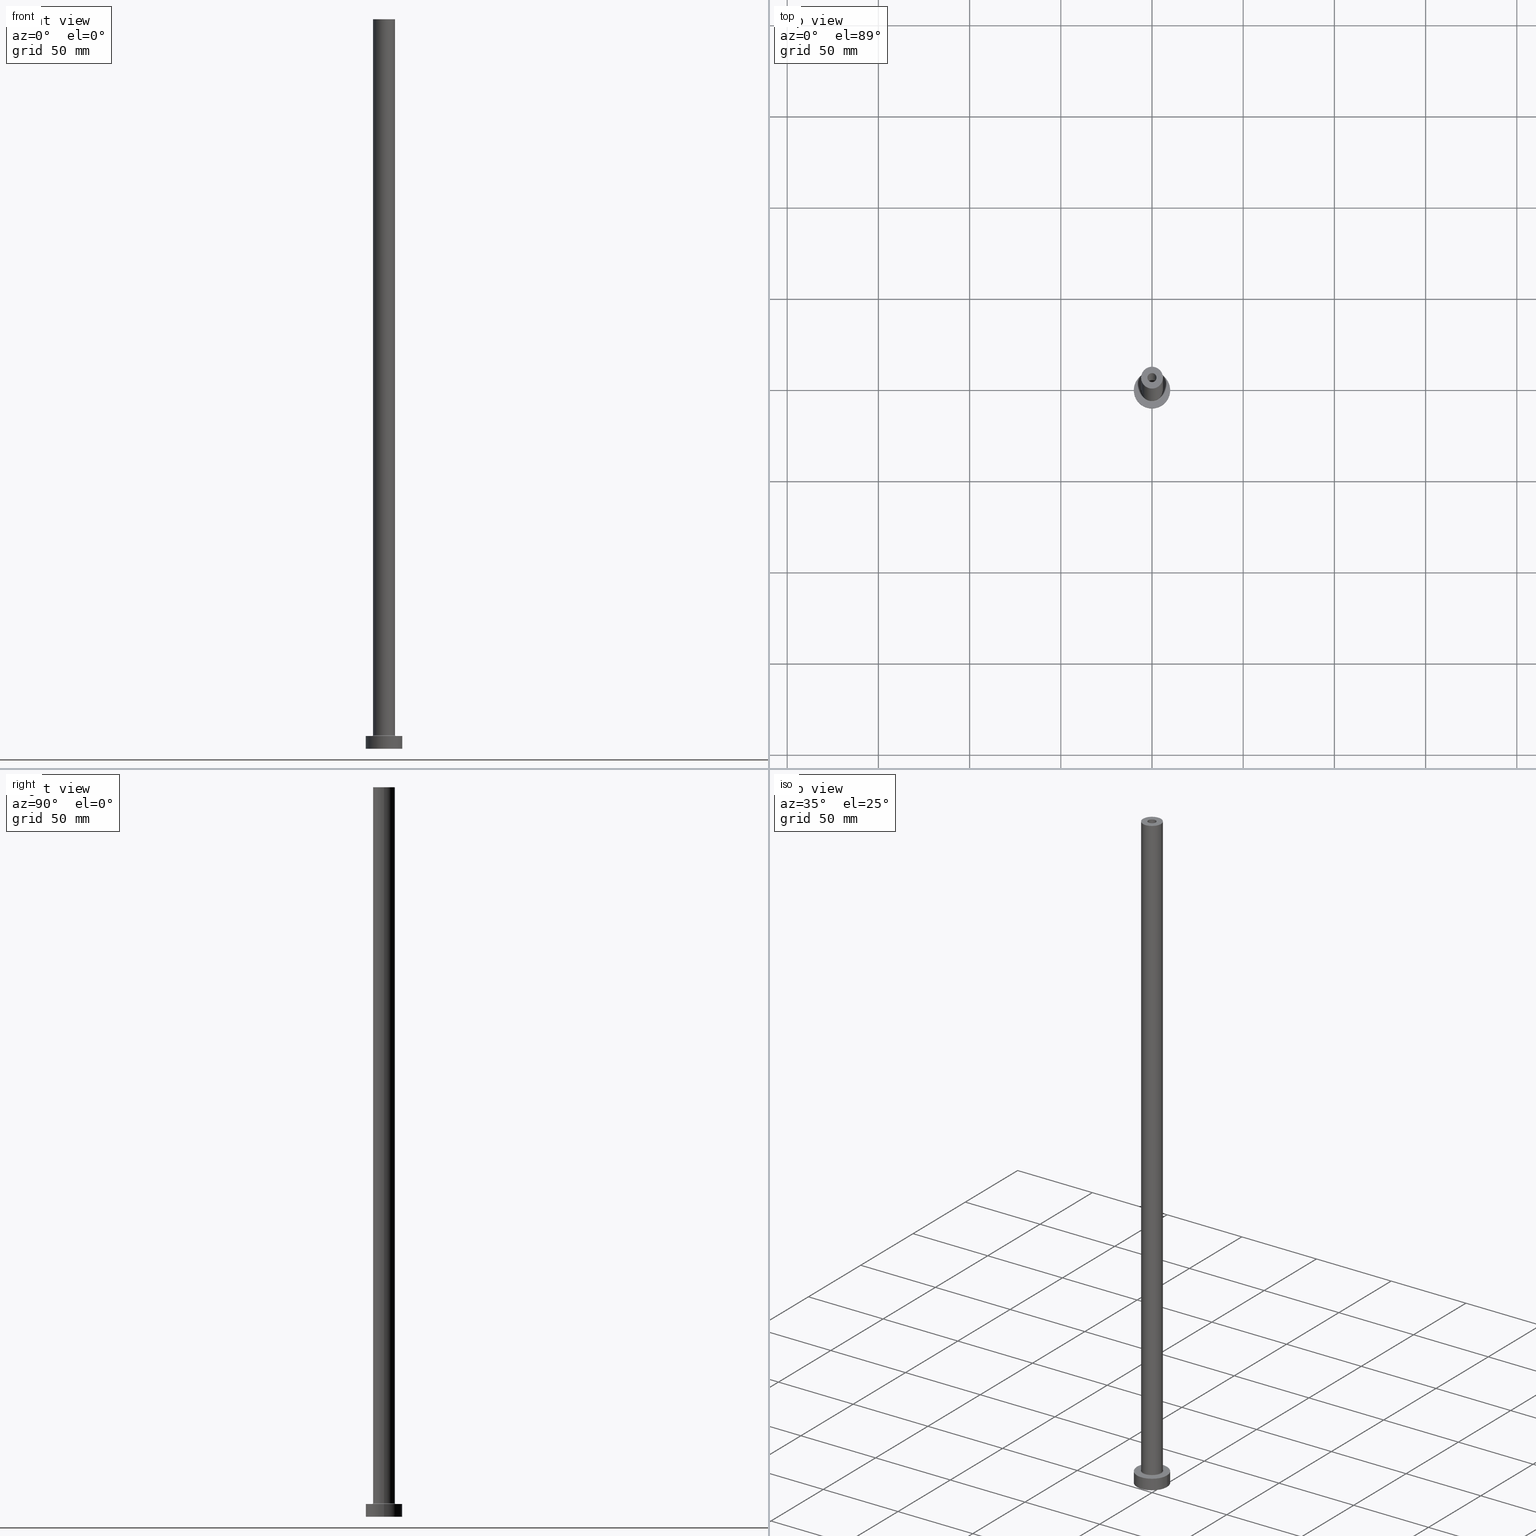
[diagram: canonical four-view strip — front | top / right | iso, engineering-drawing reading convention]
A machine part, canonical four-view strip (front | top / right | iso — engineering-drawing reading convention). The complete STEP part file that produces these views, byte-faithful:
ISO-10303-21;
HEADER;
FILE_DESCRIPTION (( 'STEP AP203' ),
    '1' );
FILE_NAME ('3f4b.STEP',
    '2023-02-13T16:45:34',
    ( '' ),
    ( '' ),
    'SwSTEP 2.0',
    'SolidWorks 2019',
    '' );
FILE_SCHEMA (( 'CONFIG_CONTROL_DESIGN' ));
ENDSEC;

DATA;
#1 = DIRECTION ( 'NONE',  ( 0.000000000000000000, 0.000000000000000000, 1.000000000000000000 ) ) ;
#2 = DIRECTION ( 'NONE',  ( -0.000000000000000000, -0.000000000000000000, -1.000000000000000000 ) ) ;
#3 = ADVANCED_FACE ( 'NONE', ( #409 ), #62, .T. ) ;
#4 = FACE_OUTER_BOUND ( 'NONE', #239, .T. ) ;
#5 = ORIENTED_EDGE ( 'NONE', *, *, #36, .T. ) ;
#6 = DIRECTION ( 'NONE',  ( 1.000000000000000000, 0.000000000000000000, -0.000000000000000000 ) ) ;
#7 = CIRCLE ( 'NONE', #377, 10.00000000000000000 ) ;
#8 = DIRECTION ( 'NONE',  ( -1.000000000000000000, 0.000000000000000000, 0.000000000000000000 ) ) ;
#9 = VERTEX_POINT ( 'NONE', #243 ) ;
#10 = CARTESIAN_POINT ( 'NONE',  ( 0.000000000000000000, 0.000000000000000000, 0.000000000000000000 ) ) ;
#11 = VERTEX_POINT ( 'NONE', #166 ) ;
#12 = DIRECTION ( 'NONE',  ( 0.000000000000000000, 0.000000000000000000, -1.000000000000000000 ) ) ;
#13 = ORIENTED_EDGE ( 'NONE', *, *, #436, .F. ) ;
#14 = SECURITY_CLASSIFICATION ( '', '', #283 ) ;
#15 = ORIENTED_EDGE ( 'NONE', *, *, #244, .T. ) ;
#16 = FACE_OUTER_BOUND ( 'NONE', #224, .T. ) ;
#17 = CC_DESIGN_PERSON_AND_ORGANIZATION_ASSIGNMENT ( #309, #134, ( #213 ) ) ;
#18 = EDGE_LOOP ( 'NONE', ( #69, #437 ) ) ;
#19 = DIRECTION ( 'NONE',  ( 1.000000000000000000, 0.000000000000000000, -0.000000000000000000 ) ) ;
#20 = FACE_OUTER_BOUND ( 'NONE', #293, .T. ) ;
#21 = CARTESIAN_POINT ( 'NONE',  ( 0.000000000000000000, 0.000000000000000000, 7.000000000000000000 ) ) ;
#22 = CYLINDRICAL_SURFACE ( 'NONE', #284, 6.000000000000000888 ) ;
#23 = DIRECTION ( 'NONE',  ( 1.000000000000000000, 0.000000000000000000, 0.000000000000000000 ) ) ;
#24 = CC_DESIGN_DATE_AND_TIME_ASSIGNMENT ( #316, #459, ( #14 ) ) ;
#25 = DIRECTION ( 'NONE',  ( -1.000000000000000000, 0.000000000000000000, 0.000000000000000000 ) ) ;
#26 = LINE ( 'NONE', #167, #218 ) ;
#27 = CARTESIAN_POINT ( 'NONE',  ( -2.649999999999999911, 0.000000000000000000, 362.4953318805773961 ) ) ;
#28 = COORDINATED_UNIVERSAL_TIME_OFFSET ( 1, 0, .AHEAD. ) ;
#29 = AXIS2_PLACEMENT_3D ( 'NONE', #186, #145, #23 ) ;
#30 = ORIENTED_EDGE ( 'NONE', *, *, #365, .T. ) ;
#31 = APPROVAL_STATUS ( 'not_yet_approved' ) ;
#32 = LOCAL_TIME ( 17, 45, 34.00000000000000000, #451 ) ;
#33 = EDGE_CURVE ( 'NONE', #160, #241, #389, .T. ) ;
#34 = APPROVAL_STATUS ( 'not_yet_approved' ) ;
#35 = ORIENTED_EDGE ( 'NONE', *, *, #153, .F. ) ;
#36 = EDGE_CURVE ( 'NONE', #11, #176, #26, .T. ) ;
#37 = DIRECTION ( 'NONE',  ( 0.000000000000000000, 0.000000000000000000, 1.000000000000000000 ) ) ;
#38 = CIRCLE ( 'NONE', #142, 0.5000000000000004441 ) ;
#39 = AXIS2_PLACEMENT_3D ( 'NONE', #117, #345, #56 ) ;
#40 = FACE_BOUND ( 'NONE', #18, .T. ) ;
#41 = DIRECTION ( 'NONE',  ( -0.000000000000000000, -0.000000000000000000, -1.000000000000000000 ) ) ;
#42 = CARTESIAN_POINT ( 'NONE',  ( 0.000000000000000000, 0.000000000000000000, 355.0000000000000568 ) ) ;
#43 = AXIS2_PLACEMENT_3D ( 'NONE', #61, #342, #433 ) ;
#44 = DIRECTION ( 'NONE',  ( 0.000000000000000000, 0.000000000000000000, 1.000000000000000000 ) ) ;
#45 = CARTESIAN_POINT ( 'NONE',  ( -10.00000000000000000, 0.000000000000000000, 0.000000000000000000 ) ) ;
#46 = DIRECTION ( 'NONE',  ( 0.000000000000000000, 0.000000000000000000, -1.000000000000000000 ) ) ;
#47 = CARTESIAN_POINT ( 'NONE',  ( 6.000000000000000888, 7.347880794884120722E-16, 400.0000000000000000 ) ) ;
#48 = CIRCLE ( 'NONE', #390, 6.000000000000000888 ) ;
#49 = DESIGN_CONTEXT ( 'detailed design', #450, 'design' ) ;
#50 = CIRCLE ( 'NONE', #39, 10.00000000000000000 ) ;
#51 = ADVANCED_FACE ( 'NONE', ( #310 ), #158, .F. ) ;
#52 = ORIENTED_EDGE ( 'NONE', *, *, #161, .F. ) ;
#53 = CARTESIAN_POINT ( 'NONE',  ( -6.500000000000000888, 7.960204194457796463E-16, 7.000000000000002665 ) ) ;
#54 = DIRECTION ( 'NONE',  ( -0.000000000000000000, -0.000000000000000000, -1.000000000000000000 ) ) ;
#55 = ORIENTED_EDGE ( 'NONE', *, *, #63, .F. ) ;
#56 = DIRECTION ( 'NONE',  ( 1.000000000000000000, 0.000000000000000000, 0.000000000000000000 ) ) ;
#57 = CARTESIAN_POINT ( 'NONE',  ( 10.00000000000000000, 1.224646799147353256E-15, 7.000000000000000000 ) ) ;
#58 = ADVANCED_FACE ( 'NONE', ( #445 ), #334, .F. ) ;
#59 = ORIENTED_EDGE ( 'NONE', *, *, #208, .F. ) ;
#60 = CARTESIAN_POINT ( 'NONE',  ( 0.000000000000000000, 0.000000000000000000, 400.0000000000000000 ) ) ;
#61 = CARTESIAN_POINT ( 'NONE',  ( 0.000000000000000000, 0.000000000000000000, 7.500000000000007105 ) ) ;
#62 = CYLINDRICAL_SURFACE ( 'NONE', #205, 10.00000000000000000 ) ;
#63 = EDGE_CURVE ( 'NONE', #443, #298, #238, .T. ) ;
#64 = DIRECTION ( 'NONE',  ( -0.000000000000000000, -0.000000000000000000, -1.000000000000000000 ) ) ;
#65 = VECTOR ( 'NONE', #297, 1000.000000000000000 ) ;
#66 = DIRECTION ( 'NONE',  ( 1.000000000000000000, 0.000000000000000000, 0.000000000000000000 ) ) ;
#67 = CALENDAR_DATE ( 2023, 13, 2 ) ;
#68 = PERSON_AND_ORGANIZATION_ROLE ( 'classification_officer' ) ;
#69 = ORIENTED_EDGE ( 'NONE', *, *, #33, .T. ) ;
#70 = LOCAL_TIME ( 17, 45, 34.00000000000000000, #106 ) ;
#71 = PERSON_AND_ORGANIZATION ( #143, #191 ) ;
#72 = PRODUCT ( '3f4b', '3f4b', '', ( #278 ) ) ;
#73 = ADVANCED_FACE ( 'NONE', ( #156 ), #95, .F. ) ;
#74 = DIRECTION ( 'NONE',  ( -0.000000000000000000, -0.000000000000000000, -1.000000000000000000 ) ) ;
#75 = CARTESIAN_POINT ( 'NONE',  ( 2.500000000000000000, 3.061616997868382648E-16, 355.0000000000000568 ) ) ;
#76 = DIRECTION ( 'NONE',  ( -1.000000000000000000, 1.224646799147351482E-16, 0.000000000000000000 ) ) ;
#77 = EDGE_LOOP ( 'NONE', ( #88, #198 ) ) ;
#78 = DIRECTION ( 'NONE',  ( 1.000000000000000000, 0.000000000000000000, 0.000000000000000000 ) ) ;
#79 = LINE ( 'NONE', #225, #449 ) ;
#80 = ORIENTED_EDGE ( 'NONE', *, *, #415, .T. ) ;
#81 = CARTESIAN_POINT ( 'NONE',  ( 0.000000000000000000, 0.000000000000000000, 0.000000000000000000 ) ) ;
#82 = CARTESIAN_POINT ( 'NONE',  ( 0.000000000000000000, 0.000000000000000000, 362.4953318805773961 ) ) ;
#83 = EDGE_CURVE ( 'NONE', #454, #406, #456, .T. ) ;
#84 = ORIENTED_EDGE ( 'NONE', *, *, #344, .T. ) ;
#85 = DIRECTION ( 'NONE',  ( 1.224646799147353207E-16, 1.000000000000000000, -0.000000000000000000 ) ) ;
#86 = ORIENTED_EDGE ( 'NONE', *, *, #153, .T. ) ;
#87 = DIRECTION ( 'NONE',  ( 0.000000000000000000, 0.000000000000000000, 1.000000000000000000 ) ) ;
#88 = ORIENTED_EDGE ( 'NONE', *, *, #83, .F. ) ;
#89 = ADVANCED_FACE ( 'NONE', ( #40, #184 ), #322, .T. ) ;
#90 = EDGE_LOOP ( 'NONE', ( #422, #351 ) ) ;
#91 = DIRECTION ( 'NONE',  ( 1.000000000000000000, 0.000000000000000000, 0.000000000000000000 ) ) ;
#92 = DIRECTION ( 'NONE',  ( -0.000000000000000000, -0.000000000000000000, -1.000000000000000000 ) ) ;
#93 = ORIENTED_EDGE ( 'NONE', *, *, #344, .F. ) ;
#94 = ORIENTED_EDGE ( 'NONE', *, *, #202, .T. ) ;
#95 = TOROIDAL_SURFACE ( 'NONE', #271, 6.500000000000000888, 0.5000000000000000000 ) ;
#96 = FACE_BOUND ( 'NONE', #139, .T. ) ;
#97 = ORIENTED_EDGE ( 'NONE', *, *, #168, .F. ) ;
#98 = CYLINDRICAL_SURFACE ( 'NONE', #424, 2.500000000000000000 ) ;
#99 = CC_DESIGN_PERSON_AND_ORGANIZATION_ASSIGNMENT ( #129, #68, ( #14 ) ) ;
#100 = APPROVAL_DATE_TIME ( #170, #221 ) ;
#101 = AXIS2_PLACEMENT_3D ( 'NONE', #359, #290, #435 ) ;
#102 =( GEOMETRIC_REPRESENTATION_CONTEXT ( 3 ) GLOBAL_UNCERTAINTY_ASSIGNED_CONTEXT ( ( #187 ) ) GLOBAL_UNIT_ASSIGNED_CONTEXT ( ( #159, #240, #347 ) ) REPRESENTATION_CONTEXT ( 'NONE', 'WORKASPACE' ) );
#103 = PERSON_AND_ORGANIZATION_ROLE ( 'design_owner' ) ;
#104 = MANIFOLD_SOLID_BREP ( 'Odebrat vysunut�m4', #352 ) ;
#105 = EDGE_CURVE ( 'NONE', #147, #325, #383, .T. ) ;
#106 = COORDINATED_UNIVERSAL_TIME_OFFSET ( 1, 0, .AHEAD. ) ;
#107 = CIRCLE ( 'NONE', #200, 2.649999999999999911 ) ;
#108 = APPROVAL ( #34, 'NEUR�EN�' ) ;
#109 = FACE_OUTER_BOUND ( 'NONE', #312, .T. ) ;
#110 = VERTEX_POINT ( 'NONE', #206 ) ;
#111 = DIRECTION ( 'NONE',  ( 1.000000000000000000, 0.000000000000000000, 0.000000000000000000 ) ) ;
#112 = CARTESIAN_POINT ( 'NONE',  ( 0.000000000000000000, 0.000000000000000000, 400.0000000000000000 ) ) ;
#113 = AXIS2_PLACEMENT_3D ( 'NONE', #235, #87, #199 ) ;
#114 = ADVANCED_FACE ( 'NONE', ( #165 ), #22, .T. ) ;
#115 = DIRECTION ( 'NONE',  ( 0.000000000000000000, 0.000000000000000000, 1.000000000000000000 ) ) ;
#116 = CARTESIAN_POINT ( 'NONE',  ( 0.000000000000000000, 0.000000000000000000, 7.500000000000007105 ) ) ;
#117 = CARTESIAN_POINT ( 'NONE',  ( 0.000000000000000000, 0.000000000000000000, 7.000000000000000000 ) ) ;
#118 = AXIS2_PLACEMENT_3D ( 'NONE', #42, #185, #323 ) ;
#119 = VERTEX_POINT ( 'NONE', #75 ) ;
#120 = EDGE_CURVE ( 'NONE', #454, #110, #217, .T. ) ;
#121 = ORIENTED_EDGE ( 'NONE', *, *, #417, .F. ) ;
#122 = CARTESIAN_POINT ( 'NONE',  ( -6.000000000000000888, 0.000000000000000000, 7.500000000000007105 ) ) ;
#123 = LINE ( 'NONE', #155, #65 ) ;
#124 = CARTESIAN_POINT ( 'NONE',  ( 10.00000000000000000, 1.224646799147353256E-15, 7.000000000000000000 ) ) ;
#125 = AXIS2_PLACEMENT_3D ( 'NONE', #116, #367, #399 ) ;
#126 = AXIS2_PLACEMENT_3D ( 'NONE', #333, #339, #91 ) ;
#127 = CARTESIAN_POINT ( 'NONE',  ( 2.649999999999999911, 3.245314017740485962E-16, 0.000000000000000000 ) ) ;
#128 = ADVANCED_FACE ( 'NONE', ( #20 ), #320, .T. ) ;
#129 = PERSON_AND_ORGANIZATION ( #143, #191 ) ;
#130 = ORIENTED_EDGE ( 'NONE', *, *, #36, .F. ) ;
#131 = APPLICATION_PROTOCOL_DEFINITION ( 'international standard', 'config_control_design', 1994, #381 ) ;
#132 = CC_DESIGN_PERSON_AND_ORGANIZATION_ASSIGNMENT ( #314, #249, ( #213 ) ) ;
#133 = CIRCLE ( 'NONE', #101, 2.500000000000000000 ) ;
#134 = PERSON_AND_ORGANIZATION_ROLE ( 'design_supplier' ) ;
#135 = ORIENTED_EDGE ( 'NONE', *, *, #349, .F. ) ;
#136 = ORIENTED_EDGE ( 'NONE', *, *, #168, .T. ) ;
#137 = DATE_AND_TIME ( #67, #32 ) ;
#138 = CARTESIAN_POINT ( 'NONE',  ( 0.000000000000000000, 0.000000000000000000, 7.500000000000007105 ) ) ;
#139 = EDGE_LOOP ( 'NONE', ( #350, #154 ) ) ;
#140 = DATE_TIME_ROLE ( 'creation_date' ) ;
#141 = ADVANCED_FACE ( 'NONE', ( #152, #253 ), #149, .T. ) ;
#142 = AXIS2_PLACEMENT_3D ( 'NONE', #227, #85, #76 ) ;
#143 = PERSON ( 'NEUR�EN�', 'NEUR�EN�', 'NEUR�EN�', ('NEUR�EN�'), ('NEUR�EN�'), ('NEUR�EN�') ) ;
#144 = DIRECTION ( 'NONE',  ( -0.000000000000000000, -0.000000000000000000, -1.000000000000000000 ) ) ;
#145 = DIRECTION ( 'NONE',  ( 0.000000000000000000, 0.000000000000000000, 1.000000000000000000 ) ) ;
#146 = DIRECTION ( 'NONE',  ( 1.000000000000000000, 0.000000000000000000, -0.000000000000000000 ) ) ;
#147 = VERTEX_POINT ( 'NONE', #151 ) ;
#148 = ADVANCED_FACE ( 'NONE', ( #401, #109 ), #331, .F. ) ;
#149 = PLANE ( 'NONE',  #346 ) ;
#150 = AXIS2_PLACEMENT_3D ( 'NONE', #262, #393, #256 ) ;
#151 = CARTESIAN_POINT ( 'NONE',  ( -10.00000000000000000, 0.000000000000000000, 7.000000000000000000 ) ) ;
#152 = FACE_BOUND ( 'NONE', #90, .T. ) ;
#153 = EDGE_CURVE ( 'NONE', #413, #443, #219, .T. ) ;
#154 = ORIENTED_EDGE ( 'NONE', *, *, #263, .T. ) ;
#155 = CARTESIAN_POINT ( 'NONE',  ( 2.649999999999999911, 3.245314017740485962E-16, 362.4953318805773961 ) ) ;
#156 = FACE_OUTER_BOUND ( 'NONE', #173, .T. ) ;
#157 = CARTESIAN_POINT ( 'NONE',  ( 6.000000000000000888, 7.347880794884120722E-16, 400.0000000000000000 ) ) ;
#158 = CYLINDRICAL_SURFACE ( 'NONE', #264, 2.649999999999999911 ) ;
#159 =( LENGTH_UNIT ( ) NAMED_UNIT ( * ) SI_UNIT ( .MILLI., .METRE. ) );
#160 = VERTEX_POINT ( 'NONE', #425 ) ;
#161 = EDGE_CURVE ( 'NONE', #379, #241, #38, .T. ) ;
#162 = DIRECTION ( 'NONE',  ( -1.000000000000000000, 0.000000000000000000, 0.000000000000000000 ) ) ;
#163 = AXIS2_PLACEMENT_3D ( 'NONE', #317, #215, #247 ) ;
#164 = COORDINATED_UNIVERSAL_TIME_OFFSET ( 1, 0, .AHEAD. ) ;
#165 = FACE_OUTER_BOUND ( 'NONE', #453, .T. ) ;
#166 = CARTESIAN_POINT ( 'NONE',  ( -2.500000000000000000, 0.000000000000000000, 400.0000000000000000 ) ) ;
#167 = CARTESIAN_POINT ( 'NONE',  ( -2.500000000000000000, 0.000000000000000000, 400.0000000000000000 ) ) ;
#168 = EDGE_CURVE ( 'NONE', #298, #160, #212, .T. ) ;
#169 = ORIENTED_EDGE ( 'NONE', *, *, #214, .F. ) ;
#170 = DATE_AND_TIME ( #207, #308 ) ;
#171 = EDGE_LOOP ( 'NONE', ( #400, #373, #188, #229 ) ) ;
#172 = APPROVAL_DATE_TIME ( #353, #403 ) ;
#173 = EDGE_LOOP ( 'NONE', ( #59, #183, #272, #97 ) ) ;
#174 = APPROVAL_STATUS ( 'not_yet_approved' ) ;
#175 = DIRECTION ( 'NONE',  ( 1.000000000000000000, 0.000000000000000000, 0.000000000000000000 ) ) ;
#176 = VERTEX_POINT ( 'NONE', #429 ) ;
#177 = CC_DESIGN_DATE_AND_TIME_ASSIGNMENT ( #209, #140, ( #356 ) ) ;
#178 = AXIS2_PLACEMENT_3D ( 'NONE', #426, #1, #111 ) ;
#179 = CIRCLE ( 'NONE', #113, 2.500000000000000000 ) ;
#180 = DIRECTION ( 'NONE',  ( -1.000000000000000000, 0.000000000000000000, 0.000000000000000000 ) ) ;
#181 = CARTESIAN_POINT ( 'NONE',  ( -10.00000000000000000, 0.000000000000000000, 7.000000000000000000 ) ) ;
#182 = EDGE_CURVE ( 'NONE', #9, #11, #133, .T. ) ;
#183 = ORIENTED_EDGE ( 'NONE', *, *, #161, .T. ) ;
#184 = FACE_OUTER_BOUND ( 'NONE', #407, .T. ) ;
#185 = DIRECTION ( 'NONE',  ( 0.000000000000000000, 0.000000000000000000, 1.000000000000000000 ) ) ;
#186 = CARTESIAN_POINT ( 'NONE',  ( 0.000000000000000000, 0.000000000000000000, 7.000000000000000000 ) ) ;
#187 = UNCERTAINTY_MEASURE_WITH_UNIT (LENGTH_MEASURE( 1.000000000000000082E-05 ), #159, 'distance_accuracy_value', 'NONE');
#188 = ORIENTED_EDGE ( 'NONE', *, *, #120, .T. ) ;
#189 = CYLINDRICAL_SURFACE ( 'NONE', #289, 2.500000000000000000 ) ;
#190 = VECTOR ( 'NONE', #41, 1000.000000000000000 ) ;
#191 = ORGANIZATION ( 'NEUR�EN�', 'NEUR�EN�', '' ) ;
#192 = ORIENTED_EDGE ( 'NONE', *, *, #269, .T. ) ;
#193 = CC_DESIGN_PERSON_AND_ORGANIZATION_ASSIGNMENT ( #388, #348, ( #356 ) ) ;
#194 = CARTESIAN_POINT ( 'NONE',  ( 0.000000000000000000, 0.000000000000000000, 7.000000000000000000 ) ) ;
#195 = ORIENTED_EDGE ( 'NONE', *, *, #182, .T. ) ;
#196 = CARTESIAN_POINT ( 'NONE',  ( 2.649999999999999911, 3.245314017740485962E-16, 355.0000000000000568 ) ) ;
#197 = VECTOR ( 'NONE', #54, 1000.000000000000000 ) ;
#198 = ORIENTED_EDGE ( 'NONE', *, *, #285, .F. ) ;
#199 = DIRECTION ( 'NONE',  ( 1.000000000000000000, 0.000000000000000000, 0.000000000000000000 ) ) ;
#200 = AXIS2_PLACEMENT_3D ( 'NONE', #10, #74, #321 ) ;
#201 = DIRECTION ( 'NONE',  ( 1.000000000000000000, 0.000000000000000000, 0.000000000000000000 ) ) ;
#202 = EDGE_CURVE ( 'NONE', #298, #379, #418, .T. ) ;
#203 = CARTESIAN_POINT ( 'NONE',  ( 0.000000000000000000, 0.000000000000000000, 400.0000000000000000 ) ) ;
#204 = DIRECTION ( 'NONE',  ( 1.000000000000000000, 0.000000000000000000, 0.000000000000000000 ) ) ;
#205 = AXIS2_PLACEMENT_3D ( 'NONE', #306, #92, #25 ) ;
#206 = CARTESIAN_POINT ( 'NONE',  ( -2.649999999999999911, 0.000000000000000000, 0.000000000000000000 ) ) ;
#207 = CALENDAR_DATE ( 2023, 13, 2 ) ;
#208 = EDGE_CURVE ( 'NONE', #379, #298, #273, .T. ) ;
#209 = DATE_AND_TIME ( #245, #274 ) ;
#210 = APPROVAL_ROLE ( '' ) ;
#211 = AXIS2_PLACEMENT_3D ( 'NONE', #362, #434, #66 ) ;
#212 = CIRCLE ( 'NONE', #439, 0.5000000000000004441 ) ;
#213 = PRODUCT_DEFINITION_FORMATION_WITH_SPECIFIED_SOURCE ( 'LIBOVOLN�', '', #72, .NOT_KNOWN. ) ;
#214 = EDGE_CURVE ( 'NONE', #443, #413, #48, .T. ) ;
#215 = DIRECTION ( 'NONE',  ( 0.000000000000000000, 0.000000000000000000, 1.000000000000000000 ) ) ;
#216 = CARTESIAN_POINT ( 'NONE',  ( 0.000000000000000000, 0.000000000000000000, 355.0000000000000568 ) ) ;
#217 = LINE ( 'NONE', #27, #228 ) ;
#218 = VECTOR ( 'NONE', #455, 1000.000000000000000 ) ;
#219 = CIRCLE ( 'NONE', #178, 6.000000000000000888 ) ;
#220 = CIRCLE ( 'NONE', #118, 2.649999999999999911 ) ;
#221 = APPROVAL ( #174, 'NEUR�EN�' ) ;
#222 = DIRECTION ( 'NONE',  ( 1.000000000000000000, 0.000000000000000000, 0.000000000000000000 ) ) ;
#223 = VERTEX_POINT ( 'NONE', #45 ) ;
#224 = EDGE_LOOP ( 'NONE', ( #30, #192, #313, #130 ) ) ;
#225 = CARTESIAN_POINT ( 'NONE',  ( 2.500000000000000000, 3.061616997868382648E-16, 400.0000000000000000 ) ) ;
#226 = DIRECTION ( 'NONE',  ( 1.000000000000000000, 0.000000000000000000, -0.000000000000000000 ) ) ;
#227 = CARTESIAN_POINT ( 'NONE',  ( -6.500000000000000888, 7.960204194457796463E-16, 7.500000000000007105 ) ) ;
#228 = VECTOR ( 'NONE', #281, 1000.000000000000000 ) ;
#229 = ORIENTED_EDGE ( 'NONE', *, *, #427, .T. ) ;
#230 = EDGE_CURVE ( 'NONE', #413, #379, #370, .T. ) ;
#231 = DIRECTION ( 'NONE',  ( 0.000000000000000000, -1.000000000000000000, 0.000000000000000000 ) ) ;
#232 = LOCAL_TIME ( 17, 45, 34.00000000000000000, #457 ) ;
#233 = ORIENTED_EDGE ( 'NONE', *, *, #436, .T. ) ;
#234 = DIRECTION ( 'NONE',  ( 1.000000000000000000, 0.000000000000000000, 0.000000000000000000 ) ) ;
#235 = CARTESIAN_POINT ( 'NONE',  ( 0.000000000000000000, 0.000000000000000000, 355.0000000000000568 ) ) ;
#236 = CARTESIAN_POINT ( 'NONE',  ( 0.000000000000000000, 0.000000000000000000, 355.0000000000000568 ) ) ;
#237 = VECTOR ( 'NONE', #380, 1000.000000000000000 ) ;
#238 = LINE ( 'NONE', #47, #197 ) ;
#239 = EDGE_LOOP ( 'NONE', ( #440, #195, #5, #332 ) ) ;
#240 =( NAMED_UNIT ( * ) PLANE_ANGLE_UNIT ( ) SI_UNIT ( $, .RADIAN. ) );
#241 = VERTEX_POINT ( 'NONE', #53 ) ;
#242 = DIRECTION ( 'NONE',  ( 0.000000000000000000, 0.000000000000000000, -1.000000000000000000 ) ) ;
#243 = CARTESIAN_POINT ( 'NONE',  ( 2.500000000000000000, 3.061616997868382648E-16, 400.0000000000000000 ) ) ;
#244 = EDGE_CURVE ( 'NONE', #147, #223, #319, .T. ) ;
#245 = CALENDAR_DATE ( 2023, 13, 2 ) ;
#246 = PERSON_AND_ORGANIZATION ( #143, #191 ) ;
#247 = DIRECTION ( 'NONE',  ( 1.000000000000000000, 0.000000000000000000, 0.000000000000000000 ) ) ;
#248 = EDGE_LOOP ( 'NONE', ( #13, #335, #15, #84 ) ) ;
#249 = PERSON_AND_ORGANIZATION_ROLE ( 'creator' ) ;
#250 = EDGE_CURVE ( 'NONE', #442, #110, #107, .T. ) ;
#251 = DIRECTION ( 'NONE',  ( 0.000000000000000000, 0.000000000000000000, 1.000000000000000000 ) ) ;
#252 = CIRCLE ( 'NONE', #279, 2.500000000000000000 ) ;
#253 = FACE_OUTER_BOUND ( 'NONE', #329, .T. ) ;
#254 = ADVANCED_BREP_SHAPE_REPRESENTATION ( '3f4b', ( #104, #163 ), #102 ) ;
#255 = ADVANCED_FACE ( 'NONE', ( #4 ), #189, .F. ) ;
#256 = DIRECTION ( 'NONE',  ( 1.000000000000000000, 0.000000000000000000, 0.000000000000000000 ) ) ;
#257 = DIRECTION ( 'NONE',  ( -1.000000000000000000, 0.000000000000000000, 0.000000000000000000 ) ) ;
#258 = APPROVAL_PERSON_ORGANIZATION ( #280, #403, #210 ) ;
#259 = DIRECTION ( 'NONE',  ( 0.000000000000000000, 0.000000000000000000, -1.000000000000000000 ) ) ;
#260 = DIRECTION ( 'NONE',  ( 0.000000000000000000, 0.000000000000000000, 1.000000000000000000 ) ) ;
#261 = CARTESIAN_POINT ( 'NONE',  ( 6.500000000000000888, 0.000000000000000000, 7.500000000000007105 ) ) ;
#262 = CARTESIAN_POINT ( 'NONE',  ( 0.000000000000000000, 0.000000000000000000, 7.500000000000007105 ) ) ;
#263 = EDGE_CURVE ( 'NONE', #119, #176, #461, .T. ) ;
#264 = AXIS2_PLACEMENT_3D ( 'NONE', #82, #46, #301 ) ;
#265 = DIRECTION ( 'NONE',  ( 0.000000000000000000, 0.000000000000000000, 1.000000000000000000 ) ) ;
#266 = AXIS2_PLACEMENT_3D ( 'NONE', #236, #265, #19 ) ;
#267 = ORIENTED_EDGE ( 'NONE', *, *, #244, .F. ) ;
#268 = DIRECTION ( 'NONE',  ( -0.000000000000000000, -0.000000000000000000, -1.000000000000000000 ) ) ;
#269 = EDGE_CURVE ( 'NONE', #9, #119, #79, .T. ) ;
#270 = CARTESIAN_POINT ( 'NONE',  ( -2.649999999999999911, 0.000000000000000000, 355.0000000000000568 ) ) ;
#271 = AXIS2_PLACEMENT_3D ( 'NONE', #138, #251, #175 ) ;
#272 = ORIENTED_EDGE ( 'NONE', *, *, #33, .F. ) ;
#273 = CIRCLE ( 'NONE', #125, 6.000000000000000888 ) ;
#274 = LOCAL_TIME ( 17, 45, 34.00000000000000000, #164 ) ;
#275 = CARTESIAN_POINT ( 'NONE',  ( 0.000000000000000000, 0.000000000000000000, 0.000000000000000000 ) ) ;
#276 = CALENDAR_DATE ( 2023, 13, 2 ) ;
#277 = EDGE_LOOP ( 'NONE', ( #52, #378, #136, #121 ) ) ;
#278 = MECHANICAL_CONTEXT ( 'NONE', #381, 'mechanical' ) ;
#279 = AXIS2_PLACEMENT_3D ( 'NONE', #60, #416, #234 ) ;
#280 = PERSON_AND_ORGANIZATION ( #143, #191 ) ;
#281 = DIRECTION ( 'NONE',  ( 0.000000000000000000, 0.000000000000000000, -1.000000000000000000 ) ) ;
#282 = CALENDAR_DATE ( 2023, 13, 2 ) ;
#283 = SECURITY_CLASSIFICATION_LEVEL ( 'unclassified' ) ;
#284 = AXIS2_PLACEMENT_3D ( 'NONE', #203, #2, #257 ) ;
#285 = EDGE_CURVE ( 'NONE', #406, #454, #220, .T. ) ;
#286 = CARTESIAN_POINT ( 'NONE',  ( 0.000000000000000000, 0.000000000000000000, 400.0000000000000000 ) ) ;
#287 = DIRECTION ( 'NONE',  ( 0.000000000000000000, 0.000000000000000000, 1.000000000000000000 ) ) ;
#288 = ORIENTED_EDGE ( 'NONE', *, *, #208, .T. ) ;
#289 = AXIS2_PLACEMENT_3D ( 'NONE', #112, #259, #8 ) ;
#290 = DIRECTION ( 'NONE',  ( 0.000000000000000000, 0.000000000000000000, 1.000000000000000000 ) ) ;
#291 = EDGE_CURVE ( 'NONE', #176, #119, #179, .T. ) ;
#292 = DIRECTION ( 'NONE',  ( 0.000000000000000000, 0.000000000000000000, -1.000000000000000000 ) ) ;
#293 = EDGE_LOOP ( 'NONE', ( #371, #233, #302, #267 ) ) ;
#294 = EDGE_LOOP ( 'NONE', ( #341, #410 ) ) ;
#295 = FACE_OUTER_BOUND ( 'NONE', #77, .T. ) ;
#296 = ORIENTED_EDGE ( 'NONE', *, *, #214, .T. ) ;
#297 = DIRECTION ( 'NONE',  ( 0.000000000000000000, 0.000000000000000000, -1.000000000000000000 ) ) ;
#298 = VERTEX_POINT ( 'NONE', #441 ) ;
#299 = CC_DESIGN_PERSON_AND_ORGANIZATION_ASSIGNMENT ( #420, #103, ( #72 ) ) ;
#300 = DIRECTION ( 'NONE',  ( -1.000000000000000000, 0.000000000000000000, 0.000000000000000000 ) ) ;
#301 = DIRECTION ( 'NONE',  ( -1.000000000000000000, 0.000000000000000000, 0.000000000000000000 ) ) ;
#302 = ORIENTED_EDGE ( 'NONE', *, *, #349, .T. ) ;
#303 = CARTESIAN_POINT ( 'NONE',  ( 10.00000000000000000, 1.224646799147353256E-15, 0.000000000000000000 ) ) ;
#304 = ORIENTED_EDGE ( 'NONE', *, *, #230, .T. ) ;
#305 = CARTESIAN_POINT ( 'NONE',  ( 0.000000000000000000, 0.000000000000000000, 400.0000000000000000 ) ) ;
#306 = CARTESIAN_POINT ( 'NONE',  ( 0.000000000000000000, 0.000000000000000000, 7.000000000000000000 ) ) ;
#307 = VECTOR ( 'NONE', #144, 1000.000000000000000 ) ;
#308 = LOCAL_TIME ( 17, 45, 34.00000000000000000, #28 ) ;
#309 = PERSON_AND_ORGANIZATION ( #143, #191 ) ;
#310 = FACE_OUTER_BOUND ( 'NONE', #171, .T. ) ;
#311 = EDGE_LOOP ( 'NONE', ( #363, #330, #402, #447 ) ) ;
#312 = EDGE_LOOP ( 'NONE', ( #93, #135 ) ) ;
#313 = ORIENTED_EDGE ( 'NONE', *, *, #291, .F. ) ;
#314 = PERSON_AND_ORGANIZATION ( #143, #191 ) ;
#315 = CC_DESIGN_SECURITY_CLASSIFICATION ( #14, ( #213 ) ) ;
#316 = DATE_AND_TIME ( #282, #232 ) ;
#317 = CARTESIAN_POINT ( 'NONE',  ( 0.000000000000000000, 0.000000000000000000, 0.000000000000000000 ) ) ;
#318 = AXIS2_PLACEMENT_3D ( 'NONE', #216, #37, #398 ) ;
#319 = LINE ( 'NONE', #181, #307 ) ;
#320 = CYLINDRICAL_SURFACE ( 'NONE', #336, 10.00000000000000000 ) ;
#321 = DIRECTION ( 'NONE',  ( 1.000000000000000000, 0.000000000000000000, 0.000000000000000000 ) ) ;
#322 = PLANE ( 'NONE',  #368 ) ;
#323 = DIRECTION ( 'NONE',  ( 1.000000000000000000, 0.000000000000000000, 0.000000000000000000 ) ) ;
#324 = CARTESIAN_POINT ( 'NONE',  ( 0.000000000000000000, 0.000000000000000000, 7.000000000000000000 ) ) ;
#325 = VERTEX_POINT ( 'NONE', #57 ) ;
#326 = ADVANCED_FACE ( 'NONE', ( #405 ), #343, .F. ) ;
#327 = CIRCLE ( 'NONE', #396, 6.500000000000000888 ) ;
#328 = DIRECTION ( 'NONE',  ( 0.000000000000000000, 0.000000000000000000, 1.000000000000000000 ) ) ;
#329 = EDGE_LOOP ( 'NONE', ( #86, #296 ) ) ;
#330 = ORIENTED_EDGE ( 'NONE', *, *, #452, .T. ) ;
#331 = PLANE ( 'NONE',  #354 ) ;
#332 = ORIENTED_EDGE ( 'NONE', *, *, #263, .F. ) ;
#333 = CARTESIAN_POINT ( 'NONE',  ( 0.000000000000000000, 0.000000000000000000, 0.000000000000000000 ) ) ;
#334 = TOROIDAL_SURFACE ( 'NONE', #43, 6.500000000000000888, 0.5000000000000000000 ) ;
#335 = ORIENTED_EDGE ( 'NONE', *, *, #105, .F. ) ;
#336 = AXIS2_PLACEMENT_3D ( 'NONE', #194, #395, #180 ) ;
#337 = CARTESIAN_POINT ( 'NONE',  ( 0.000000000000000000, 0.000000000000000000, 362.4953318805773961 ) ) ;
#338 = AXIS2_PLACEMENT_3D ( 'NONE', #438, #375, #414 ) ;
#339 = DIRECTION ( 'NONE',  ( -0.000000000000000000, -0.000000000000000000, -1.000000000000000000 ) ) ;
#340 = ORIENTED_EDGE ( 'NONE', *, *, #63, .T. ) ;
#341 = ORIENTED_EDGE ( 'NONE', *, *, #427, .F. ) ;
#342 = DIRECTION ( 'NONE',  ( 0.000000000000000000, 0.000000000000000000, 1.000000000000000000 ) ) ;
#343 = CYLINDRICAL_SURFACE ( 'NONE', #404, 2.649999999999999911 ) ;
#344 = EDGE_CURVE ( 'NONE', #223, #366, #369, .T. ) ;
#345 = DIRECTION ( 'NONE',  ( 0.000000000000000000, 0.000000000000000000, 1.000000000000000000 ) ) ;
#346 = AXIS2_PLACEMENT_3D ( 'NONE', #286, #328, #146 ) ;
#347 =( NAMED_UNIT ( * ) SI_UNIT ( $, .STERADIAN. ) SOLID_ANGLE_UNIT ( ) );
#348 = PERSON_AND_ORGANIZATION_ROLE ( 'creator' ) ;
#349 = EDGE_CURVE ( 'NONE', #366, #223, #7, .T. ) ;
#350 = ORIENTED_EDGE ( 'NONE', *, *, #291, .T. ) ;
#351 = ORIENTED_EDGE ( 'NONE', *, *, #182, .F. ) ;
#352 = CLOSED_SHELL ( 'NONE', ( #372, #326, #73, #423, #128, #3, #89, #148, #114, #141, #58, #51, #387, #255 ) ) ;
#353 = DATE_AND_TIME ( #276, #70 ) ;
#354 = AXIS2_PLACEMENT_3D ( 'NONE', #81, #287, #6 ) ;
#355 = CC_DESIGN_APPROVAL ( #108, ( #356 ) ) ;
#356 = PRODUCT_DEFINITION ( 'NEZN�M�', '', #213, #49 ) ;
#357 = APPROVAL_DATE_TIME ( #137, #108 ) ;
#358 = CARTESIAN_POINT ( 'NONE',  ( 0.000000000000000000, 0.000000000000000000, 355.0000000000000568 ) ) ;
#359 = CARTESIAN_POINT ( 'NONE',  ( 0.000000000000000000, 0.000000000000000000, 400.0000000000000000 ) ) ;
#360 = APPROVAL_PERSON_ORGANIZATION ( #246, #108, #384 ) ;
#361 = CARTESIAN_POINT ( 'NONE',  ( -6.000000000000000888, 0.000000000000000000, 400.0000000000000000 ) ) ;
#362 = CARTESIAN_POINT ( 'NONE',  ( 0.000000000000000000, 0.000000000000000000, 7.000000000000000000 ) ) ;
#363 = ORIENTED_EDGE ( 'NONE', *, *, #83, .T. ) ;
#364 = DIRECTION ( 'NONE',  ( 0.000000000000000000, 0.000000000000000000, -1.000000000000000000 ) ) ;
#365 = EDGE_CURVE ( 'NONE', #11, #9, #252, .T. ) ;
#366 = VERTEX_POINT ( 'NONE', #303 ) ;
#367 = DIRECTION ( 'NONE',  ( 0.000000000000000000, 0.000000000000000000, 1.000000000000000000 ) ) ;
#368 = AXIS2_PLACEMENT_3D ( 'NONE', #324, #260, #226 ) ;
#369 = CIRCLE ( 'NONE', #338, 10.00000000000000000 ) ;
#370 = LINE ( 'NONE', #361, #190 ) ;
#371 = ORIENTED_EDGE ( 'NONE', *, *, #415, .F. ) ;
#372 = ADVANCED_FACE ( 'NONE', ( #16 ), #98, .F. ) ;
#373 = ORIENTED_EDGE ( 'NONE', *, *, #285, .T. ) ;
#374 = PLANE ( 'NONE',  #266 ) ;
#375 = DIRECTION ( 'NONE',  ( 0.000000000000000000, 0.000000000000000000, 1.000000000000000000 ) ) ;
#376 = DIRECTION ( 'NONE',  ( 0.000000000000000000, 0.000000000000000000, 1.000000000000000000 ) ) ;
#377 = AXIS2_PLACEMENT_3D ( 'NONE', #275, #376, #204 ) ;
#378 = ORIENTED_EDGE ( 'NONE', *, *, #202, .F. ) ;
#379 = VERTEX_POINT ( 'NONE', #122 ) ;
#380 = DIRECTION ( 'NONE',  ( -0.000000000000000000, -0.000000000000000000, -1.000000000000000000 ) ) ;
#381 = APPLICATION_CONTEXT ( 'configuration controlled 3d designs of mechanical parts and assemblies' ) ;
#382 = DIRECTION ( 'NONE',  ( -1.000000000000000000, 0.000000000000000000, 0.000000000000000000 ) ) ;
#383 = CIRCLE ( 'NONE', #29, 10.00000000000000000 ) ;
#384 = APPROVAL_ROLE ( '' ) ;
#385 = APPROVAL_PERSON_ORGANIZATION ( #71, #221, #392 ) ;
#386 = APPLICATION_PROTOCOL_DEFINITION ( 'international standard', 'config_control_design', 1994, #450 ) ;
#387 = ADVANCED_FACE ( 'NONE', ( #96, #295 ), #374, .F. ) ;
#388 = PERSON_AND_ORGANIZATION ( #143, #191 ) ;
#389 = CIRCLE ( 'NONE', #211, 6.500000000000000888 ) ;
#390 = AXIS2_PLACEMENT_3D ( 'NONE', #432, #115, #222 ) ;
#391 = CC_DESIGN_APPROVAL ( #403, ( #14 ) ) ;
#392 = APPROVAL_ROLE ( '' ) ;
#393 = DIRECTION ( 'NONE',  ( 0.000000000000000000, 0.000000000000000000, 1.000000000000000000 ) ) ;
#394 = ORIENTED_EDGE ( 'NONE', *, *, #230, .F. ) ;
#395 = DIRECTION ( 'NONE',  ( -0.000000000000000000, -0.000000000000000000, -1.000000000000000000 ) ) ;
#396 = AXIS2_PLACEMENT_3D ( 'NONE', #21, #64, #201 ) ;
#397 = PRODUCT_RELATED_PRODUCT_CATEGORY ( 'detail', '', ( #72 ) ) ;
#398 = DIRECTION ( 'NONE',  ( 1.000000000000000000, 0.000000000000000000, 0.000000000000000000 ) ) ;
#399 = DIRECTION ( 'NONE',  ( 1.000000000000000000, 0.000000000000000000, 0.000000000000000000 ) ) ;
#400 = ORIENTED_EDGE ( 'NONE', *, *, #452, .F. ) ;
#401 = FACE_BOUND ( 'NONE', #294, .T. ) ;
#402 = ORIENTED_EDGE ( 'NONE', *, *, #250, .T. ) ;
#403 = APPROVAL ( #31, 'NEUR�EN�' ) ;
#404 = AXIS2_PLACEMENT_3D ( 'NONE', #337, #242, #382 ) ;
#405 = FACE_OUTER_BOUND ( 'NONE', #311, .T. ) ;
#406 = VERTEX_POINT ( 'NONE', #196 ) ;
#407 = EDGE_LOOP ( 'NONE', ( #431, #80 ) ) ;
#408 = CARTESIAN_POINT ( 'NONE',  ( 0.000000000000000000, 0.000000000000000000, 400.0000000000000000 ) ) ;
#409 = FACE_OUTER_BOUND ( 'NONE', #248, .T. ) ;
#410 = ORIENTED_EDGE ( 'NONE', *, *, #250, .F. ) ;
#411 = EDGE_LOOP ( 'NONE', ( #169, #340, #94, #394 ) ) ;
#412 = CARTESIAN_POINT ( 'NONE',  ( -6.000000000000000888, 0.000000000000000000, 400.0000000000000000 ) ) ;
#413 = VERTEX_POINT ( 'NONE', #412 ) ;
#414 = DIRECTION ( 'NONE',  ( 1.000000000000000000, 0.000000000000000000, 0.000000000000000000 ) ) ;
#415 = EDGE_CURVE ( 'NONE', #325, #147, #50, .T. ) ;
#416 = DIRECTION ( 'NONE',  ( 0.000000000000000000, 0.000000000000000000, 1.000000000000000000 ) ) ;
#417 = EDGE_CURVE ( 'NONE', #241, #160, #327, .T. ) ;
#418 = CIRCLE ( 'NONE', #150, 6.000000000000000888 ) ;
#419 = CC_DESIGN_APPROVAL ( #221, ( #213 ) ) ;
#420 = PERSON_AND_ORGANIZATION ( #143, #191 ) ;
#421 = SHAPE_DEFINITION_REPRESENTATION ( #460, #254 ) ;
#422 = ORIENTED_EDGE ( 'NONE', *, *, #365, .F. ) ;
#423 = ADVANCED_FACE ( 'NONE', ( #446 ), #444, .T. ) ;
#424 = AXIS2_PLACEMENT_3D ( 'NONE', #408, #12, #162 ) ;
#425 = CARTESIAN_POINT ( 'NONE',  ( 6.500000000000000888, 0.000000000000000000, 7.000000000000002665 ) ) ;
#426 = CARTESIAN_POINT ( 'NONE',  ( 0.000000000000000000, 0.000000000000000000, 400.0000000000000000 ) ) ;
#427 = EDGE_CURVE ( 'NONE', #110, #442, #430, .T. ) ;
#428 = AXIS2_PLACEMENT_3D ( 'NONE', #358, #44, #78 ) ;
#429 = CARTESIAN_POINT ( 'NONE',  ( -2.500000000000000000, 0.000000000000000000, 355.0000000000000568 ) ) ;
#430 = CIRCLE ( 'NONE', #126, 2.649999999999999911 ) ;
#431 = ORIENTED_EDGE ( 'NONE', *, *, #105, .T. ) ;
#432 = CARTESIAN_POINT ( 'NONE',  ( 0.000000000000000000, 0.000000000000000000, 400.0000000000000000 ) ) ;
#433 = DIRECTION ( 'NONE',  ( 1.000000000000000000, 0.000000000000000000, 0.000000000000000000 ) ) ;
#434 = DIRECTION ( 'NONE',  ( -0.000000000000000000, -0.000000000000000000, -1.000000000000000000 ) ) ;
#435 = DIRECTION ( 'NONE',  ( 1.000000000000000000, 0.000000000000000000, 0.000000000000000000 ) ) ;
#436 = EDGE_CURVE ( 'NONE', #325, #366, #448, .T. ) ;
#437 = ORIENTED_EDGE ( 'NONE', *, *, #417, .T. ) ;
#438 = CARTESIAN_POINT ( 'NONE',  ( 0.000000000000000000, 0.000000000000000000, 0.000000000000000000 ) ) ;
#439 = AXIS2_PLACEMENT_3D ( 'NONE', #261, #231, #292 ) ;
#440 = ORIENTED_EDGE ( 'NONE', *, *, #269, .F. ) ;
#441 = CARTESIAN_POINT ( 'NONE',  ( 6.000000000000000888, 7.347880794884120722E-16, 7.500000000000007105 ) ) ;
#442 = VERTEX_POINT ( 'NONE', #127 ) ;
#443 = VERTEX_POINT ( 'NONE', #157 ) ;
#444 = CYLINDRICAL_SURFACE ( 'NONE', #458, 6.000000000000000888 ) ;
#445 = FACE_OUTER_BOUND ( 'NONE', #277, .T. ) ;
#446 = FACE_OUTER_BOUND ( 'NONE', #411, .T. ) ;
#447 = ORIENTED_EDGE ( 'NONE', *, *, #120, .F. ) ;
#448 = LINE ( 'NONE', #124, #237 ) ;
#449 = VECTOR ( 'NONE', #364, 1000.000000000000000 ) ;
#450 = APPLICATION_CONTEXT ( 'configuration controlled 3d designs of mechanical parts and assemblies' ) ;
#451 = COORDINATED_UNIVERSAL_TIME_OFFSET ( 1, 0, .AHEAD. ) ;
#452 = EDGE_CURVE ( 'NONE', #406, #442, #123, .T. ) ;
#453 = EDGE_LOOP ( 'NONE', ( #55, #35, #304, #288 ) ) ;
#454 = VERTEX_POINT ( 'NONE', #270 ) ;
#455 = DIRECTION ( 'NONE',  ( 0.000000000000000000, 0.000000000000000000, -1.000000000000000000 ) ) ;
#456 = CIRCLE ( 'NONE', #428, 2.649999999999999911 ) ;
#457 = COORDINATED_UNIVERSAL_TIME_OFFSET ( 1, 0, .AHEAD. ) ;
#458 = AXIS2_PLACEMENT_3D ( 'NONE', #305, #268, #300 ) ;
#459 = DATE_TIME_ROLE ( 'classification_date' ) ;
#460 = PRODUCT_DEFINITION_SHAPE ( 'NONE', 'NONE',  #356 ) ;
#461 = CIRCLE ( 'NONE', #318, 2.500000000000000000 ) ;
ENDSEC;
END-ISO-10303-21;
